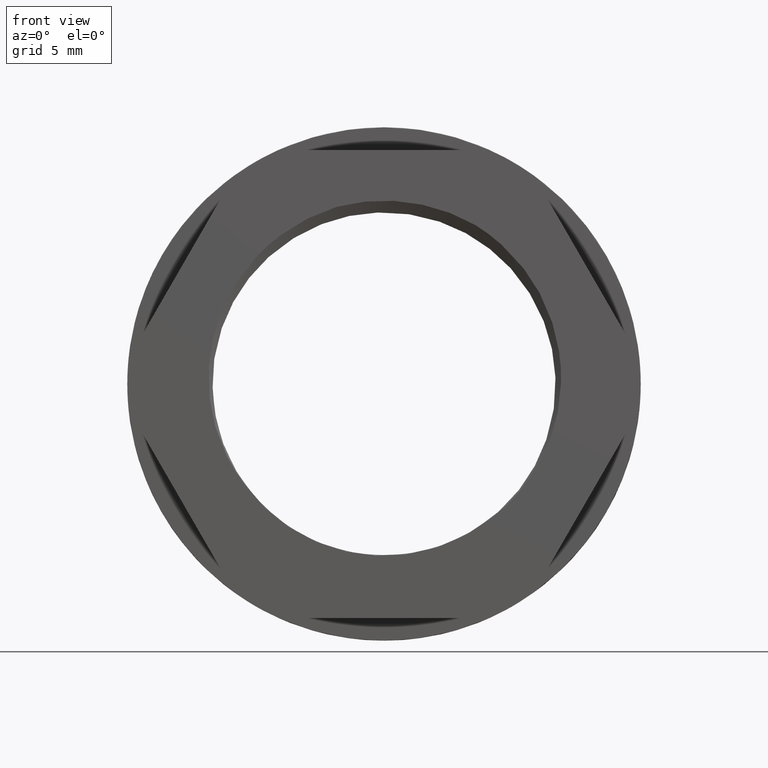
[diagram: clean part render]
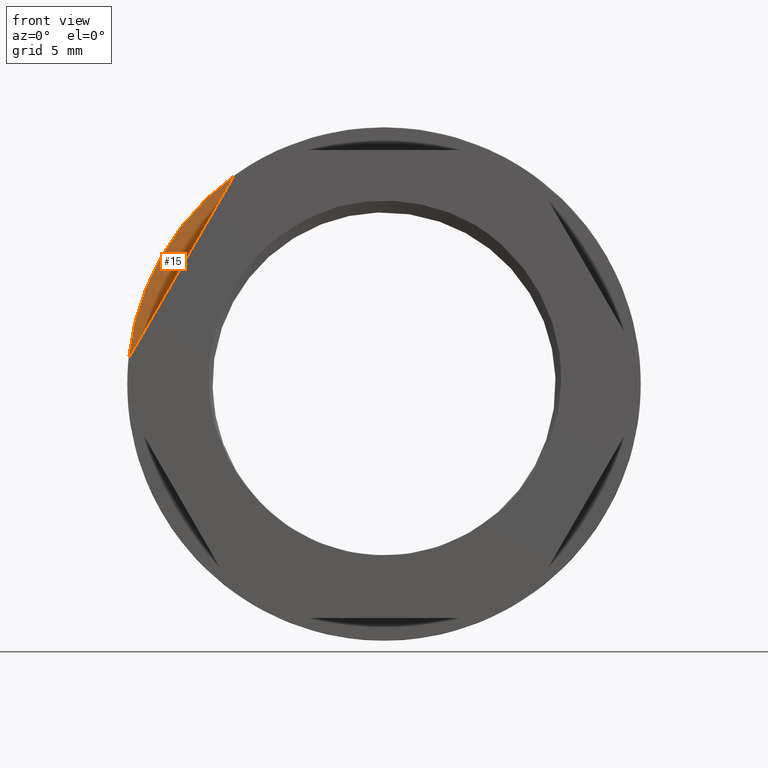
[diagram: same view with one face highlighted and labeled with its STEP entity id]
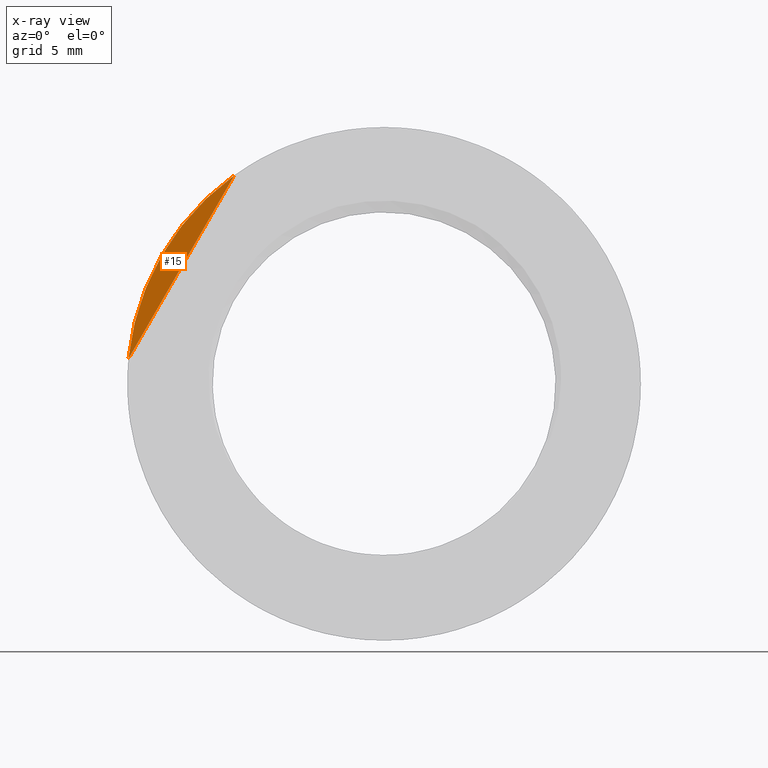
[diagram: x-ray of the same camera — body ghosted, the highlighted face saturated]
A machine part, front view. The second image highlights one B-rep face of the part: STEP entity #15.
The next image is the same camera in x-ray: the body ghosted, the highlighted face saturated — about 0% of this face is hidden behind the body in this view.
In plain terms, the highlighted planar face has unit normal (-0, 1, 0).
Its self-contained STEP definition (entity closure, byte-faithful):
#15 = ADVANCED_FACE ( 'NONE', ( #1290 ), #1314, .F. ) ;
#56 = EDGE_CURVE ( 'NONE', #1004, #1012, #1729, .T. ) ;
#60 = EDGE_CURVE ( 'NONE', #1012, #1004, #847, .T. ) ;
#468 = CARTESIAN_POINT ( 'NONE',  ( -10.21284478311344100, -11.19999999999999900, 14.21083394583276100 ) ) ;
#485 = CARTESIAN_POINT ( 'NONE',  ( -17.41336559761014900, -11.19999999999999900, 1.739166054167250000 ) ) ;
#822 = DIRECTION ( 'NONE',  ( -1.224646799147352000E-016, 1.000000000000000000, 0.0000000000000000000 ) ) ;
#846 = CARTESIAN_POINT ( 'NONE',  ( 1.371604415045035900E-015, -11.19999999999999900, 0.0000000000000000000 ) ) ;
#847 = LINE ( 'NONE', #865, #1754 ) ;
#848 = DIRECTION ( 'NONE',  ( -0.4999999999999998900, -6.123233995736768500E-017, -0.8660254037844387100 ) ) ;
#861 = DIRECTION ( 'NONE',  ( -1.000000000000000000, -9.912705577010326800E-017, 0.0000000000000000000 ) ) ;
#865 = CARTESIAN_POINT ( 'NONE',  ( -10.21284478311344100, -11.19999999999999900, 14.21083394583276100 ) ) ;
#1004 = VERTEX_POINT ( 'NONE', #485 ) ;
#1012 = VERTEX_POINT ( 'NONE', #468 ) ;
#1101 = ORIENTED_EDGE ( 'NONE', *, *, #56, .F. ) ;
#1141 = ORIENTED_EDGE ( 'NONE', *, *, #60, .F. ) ;
#1225 = EDGE_LOOP ( 'NONE', ( #1101, #1141 ) ) ;
#1263 = DIRECTION ( 'NONE',  ( -1.000000000000000000, -1.224646799147352000E-016, 0.0000000000000000000 ) ) ;
#1290 = FACE_OUTER_BOUND ( 'NONE', #1225, .T. ) ;
#1292 = DIRECTION ( 'NONE',  ( -1.224646799147352000E-016, 1.000000000000000000, 0.0000000000000000000 ) ) ;
#1305 = CARTESIAN_POINT ( 'NONE',  ( 17.50000000000000000, -11.19999999999999900, 0.0000000000000000000 ) ) ;
#1314 = PLANE ( 'NONE',  #1701 ) ;
#1701 = AXIS2_PLACEMENT_3D ( 'NONE', #1305, #1292, #1263 ) ;
#1729 = CIRCLE ( 'NONE', #1746, 17.50000000000000000 ) ;
#1746 = AXIS2_PLACEMENT_3D ( 'NONE', #846, #822, #861 ) ;
#1754 = VECTOR ( 'NONE', #848, 1000.000000000000000 ) ;